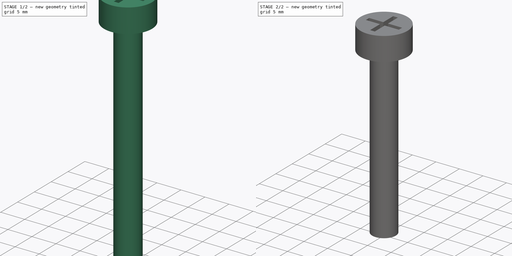
[diagram: build sequence overview — one tinted view per stage of 2, left to right]
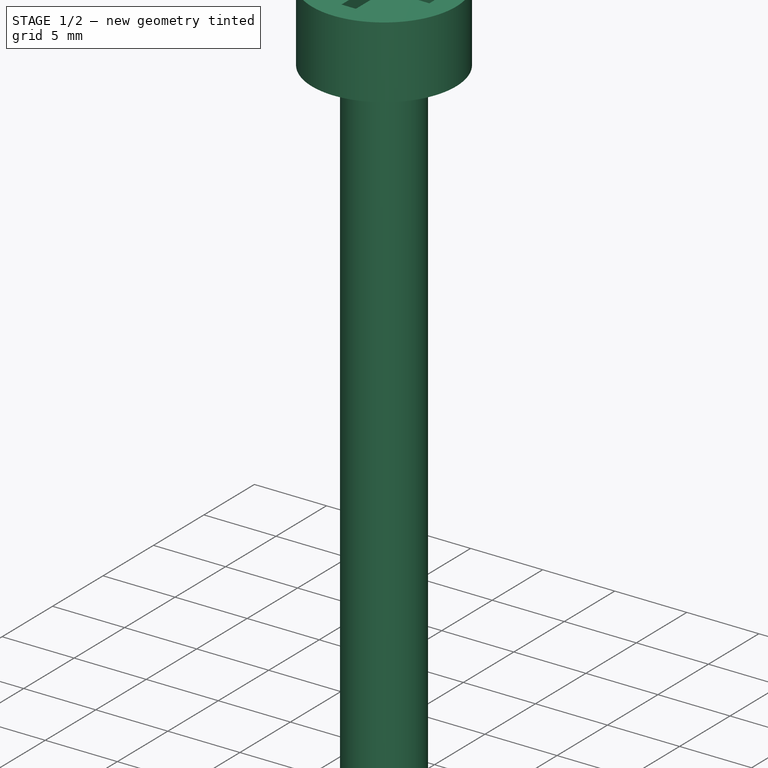
[diagram: stage 1 of 2 — iso view after this stage's code; geometry added in this stage tinted green]
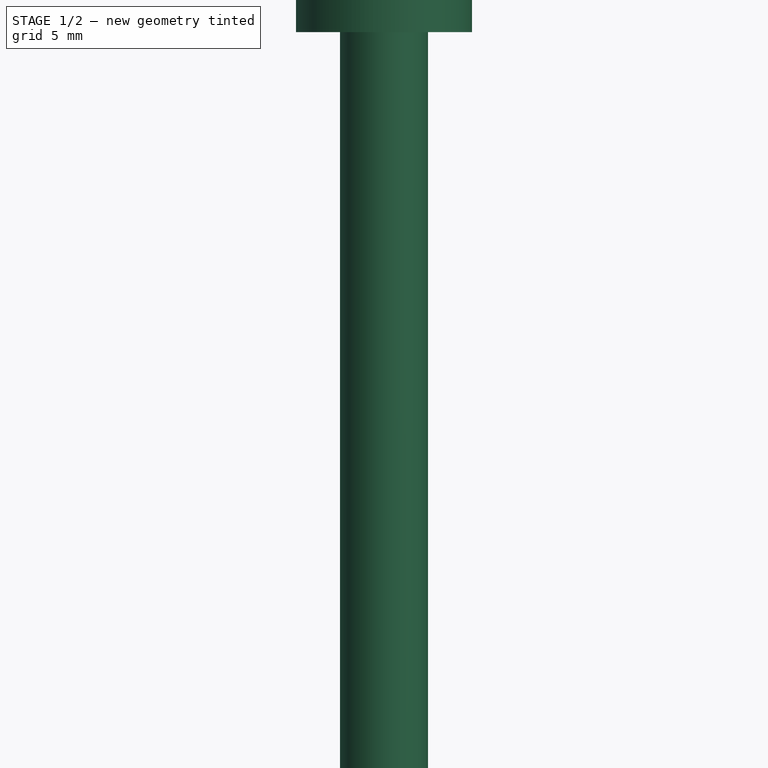
[diagram: stage 1 of 2 — front view after this stage's code; geometry added in this stage tinted green]
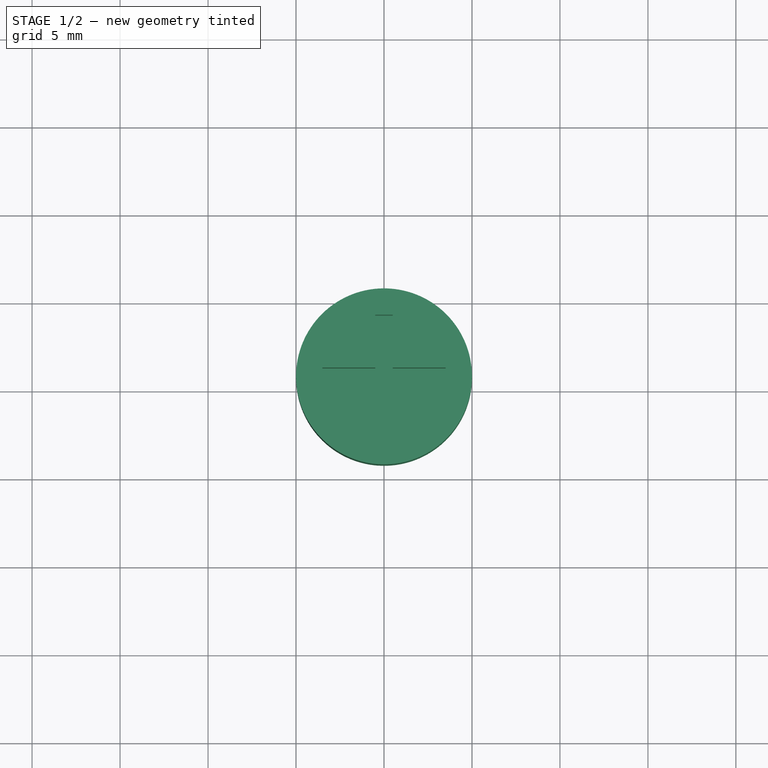
[diagram: stage 1 of 2 — top view after this stage's code; geometry added in this stage tinted green]
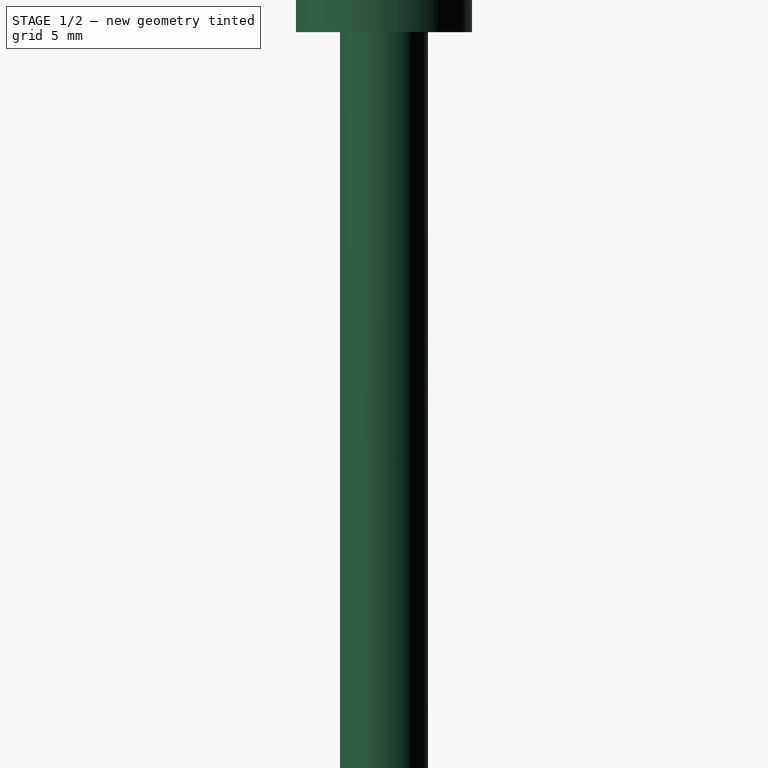
[diagram: stage 1 of 2 — right view after this stage's code; geometry added in this stage tinted green]
FCSTD DOCUMENT  (FreeCAD 1.0R39109 (Git))
Label: screw
License: All rights reserved
LicenseURL: https://en.wikipedia.org/wiki/All_rights_reserved
objects: Sketcher::SketchObject×3, PartDesign::Pocket×2, PartDesign::Revolution×1, PartDesign::Body×1
note: 16 computed .brp shape members not serialized (recipe doc carries the construction recipe); baked Part::Feature solids carry a one-line shape summary decoded from their .brp

FEATURE [Sketcher::SketchObject] Sketch
  ArcFitTolerance = 1e-06
  AttachmentSupport = -> [XZ_Plane]
  FullyConstrained = true
  MakeInternals = false
  MapMode = 5
  Placement = pos=(0,0,0) rot=(1,0,0;1.5708rad)
  sketch-geometry (6):
    g0: LineSegment StartX=0 StartY=50 StartZ=0 EndX=5 EndY=50 EndZ=0
    g1: LineSegment StartX=5 StartY=50 StartZ=0 EndX=5 EndY=45 EndZ=0
    g2: LineSegment StartX=5 StartY=45 StartZ=0 EndX=2.5 EndY=45 EndZ=0
    g3: LineSegment StartX=2.5 StartY=45 StartZ=0 EndX=2.5 EndY=0 EndZ=0
    g4: LineSegment StartX=2.5 StartY=0 StartZ=0 EndX=0 EndY=0 EndZ=0
    g5: LineSegment StartX=0 StartY=0 StartZ=0 EndX=0 EndY=50 EndZ=0
  constraints (18):
    c: PointOnObject(g0,g-2)
    c: Horizontal(g0)
    c: Coincident(g0,g1)
    c: Vertical(g1)
    c: Coincident(g1,g2)
    c: Horizontal(g2)
    c: Coincident(g2,g3)
    c: Vertical(g3)
    c: Coincident(g3,g4)
    c: PointOnObject(g4,g-2)
    c: Horizontal(g4)
    c: Coincident(g4,g5)
    c: Coincident(g5,g0)
    c: DistanceY(g3,g3) = 45
    c: DistanceY(g1,g1) = 5
    c: DistanceX(g0,g0) = 5
    c: Distance(g4,g4) = 2.5
    c: Horizontal(g4,g-1)
FEATURE [PartDesign::Revolution] Revolution
  Angle = 360
  Angle2 = 60
  Axis = (0,2e-16,1)
  Base = (0,0,0)
  Placement = pos=(0,0,0) rot=(1,0,0;1.5708rad)
  Profile = -> Sketch
  ReferenceAxis = -> Sketch [V_Axis]
  Refine = true
  Reversed = true
  Suppressed = false
  Type = 0
FEATURE [Sketcher::SketchObject] Sketch001
  ArcFitTolerance = 1e-06
  AttachmentSupport = -> [Revolution]
  FullyConstrained = true
  MakeInternals = false
  MapMode = 5
  Placement = pos=(0,2.2e-14,50) rot=(0,0,1;3.14159rad)
  sketch-geometry (12):
    g0: LineSegment StartX=-3.5 StartY=0.5 StartZ=0 EndX=-0.5 EndY=0.5 EndZ=0
    g1: LineSegment StartX=-0.5 StartY=0.5 StartZ=0 EndX=-0.5 EndY=3.5 EndZ=0
    g2: LineSegment StartX=-0.5 StartY=3.5 StartZ=0 EndX=0.5 EndY=3.5 EndZ=0
    g3: LineSegment StartX=0.5 StartY=3.5 StartZ=0 EndX=0.5 EndY=0.5 EndZ=0
    g4: LineSegment StartX=0.5 StartY=0.5 StartZ=0 EndX=3.5 EndY=0.5 EndZ=0
    g5: LineSegment StartX=3.5 StartY=0.5 StartZ=0 EndX=3.5 EndY=-0.5 EndZ=0
    g6: LineSegment StartX=3.5 StartY=-0.5 StartZ=0 EndX=0.5 EndY=-0.5 EndZ=0
    g7: LineSegment StartX=0.5 StartY=-0.5 StartZ=0 EndX=0.5 EndY=-3.5 EndZ=0
    g8: LineSegment StartX=0.5 StartY=-3.5 StartZ=0 EndX=-0.5 EndY=-3.5 EndZ=0
    g9: LineSegment StartX=-0.5 StartY=-3.5 StartZ=0 EndX=-0.5 EndY=-0.5 EndZ=0
    g10: LineSegment StartX=-0.5 StartY=-0.5 StartZ=0 EndX=-3.5 EndY=-0.5 EndZ=0
    g11: LineSegment StartX=-3.5 StartY=-0.5 StartZ=0 EndX=-3.5 EndY=0.5 EndZ=0
  constraints (35):
    c: Horizontal(g0)
    c: Coincident(g0,g1)
    c: Vertical(g1)
    c: Coincident(g1,g2)
    c: Horizontal(g2)
    c: Coincident(g2,g3)
    c: Vertical(g3)
    c: Coincident(g3,g4)
    c: Coincident(g4,g5)
    c: Coincident(g5,g6)
    c: Coincident(g6,g7)
    c: Coincident(g7,g8)
    c: Coincident(g8,g9)
    c: Coincident(g9,g10)
    c: Coincident(g10,g11)
    c: Coincident(g11,g0)
    c: Vertical(g11)
    c: Horizontal(g10)
    c: Vertical(g9)
    c: Horizontal(g8)
    c: Vertical(g7)
    c: Horizontal(g6)
    c: Horizontal(g4)
    c: Vertical(g5)
    c: Horizontal(g3,g0)
    c: Horizontal(g9,g6)
    c: Vertical(g6,g3)
    c: Vertical(g0,g9)
    c: Equal(g5,g2)
    c: Equal(g4,g3)
    c: Equal(g10,g6)
    c: DistanceY(g1,g1) = 3
    c: DistanceY(g11,g11) = 1
    c: Equal(g7,g3)
    c: Symmetric(g3,g9,g-1)
FEATURE [PartDesign::Pocket] Pocket
  BaseFeature = -> Revolution
  Direction = (0,0,-1)
  Length = 3
  Length2 = 5
  Placement = pos=(0,0,0) rot=(1,0,0;1.5708rad)
  Profile = -> Sketch001
  ReferenceAxis = -> Sketch001 [N_Axis]
  Refine = true
  Suppressed = false
  Type = 0
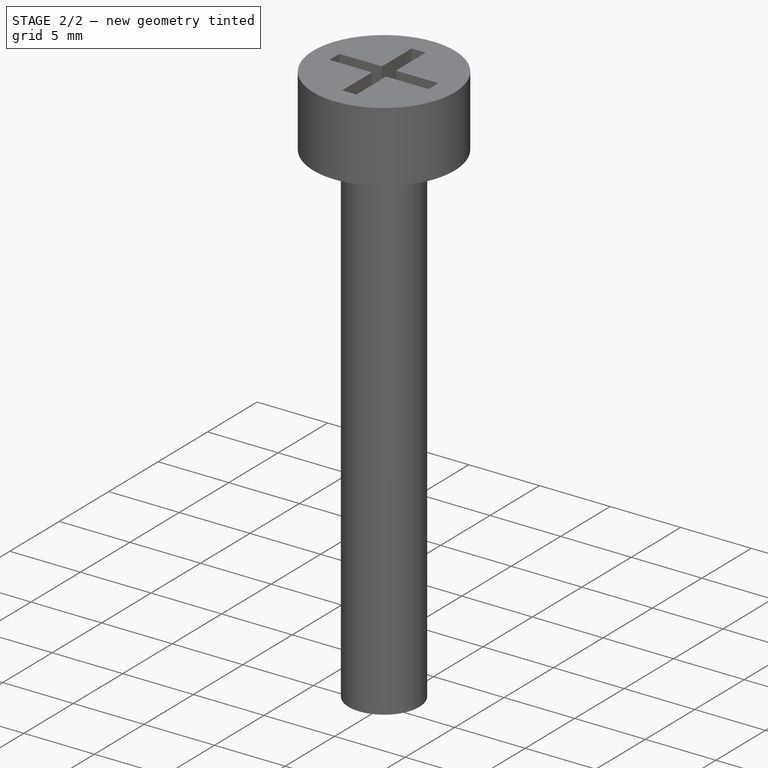
[diagram: stage 2 of 2 — iso view after this stage's code; geometry added in this stage tinted green]
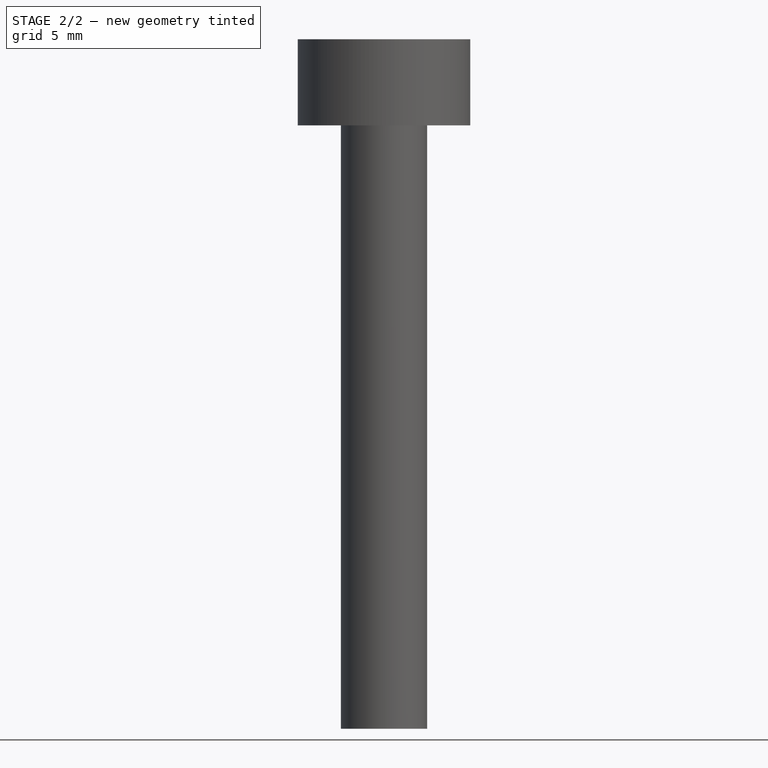
[diagram: stage 2 of 2 — front view after this stage's code; geometry added in this stage tinted green]
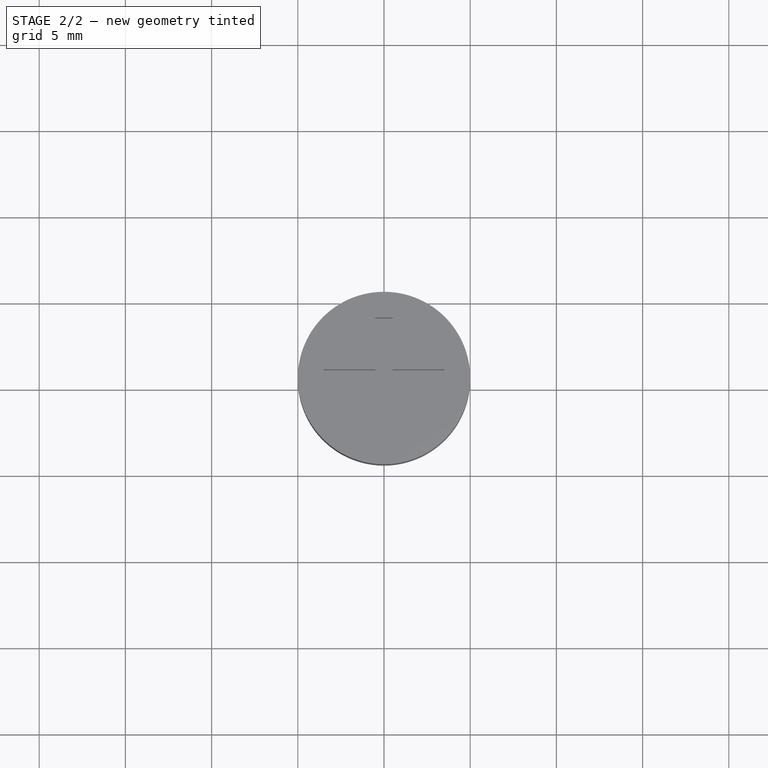
[diagram: stage 2 of 2 — top view after this stage's code; geometry added in this stage tinted green]
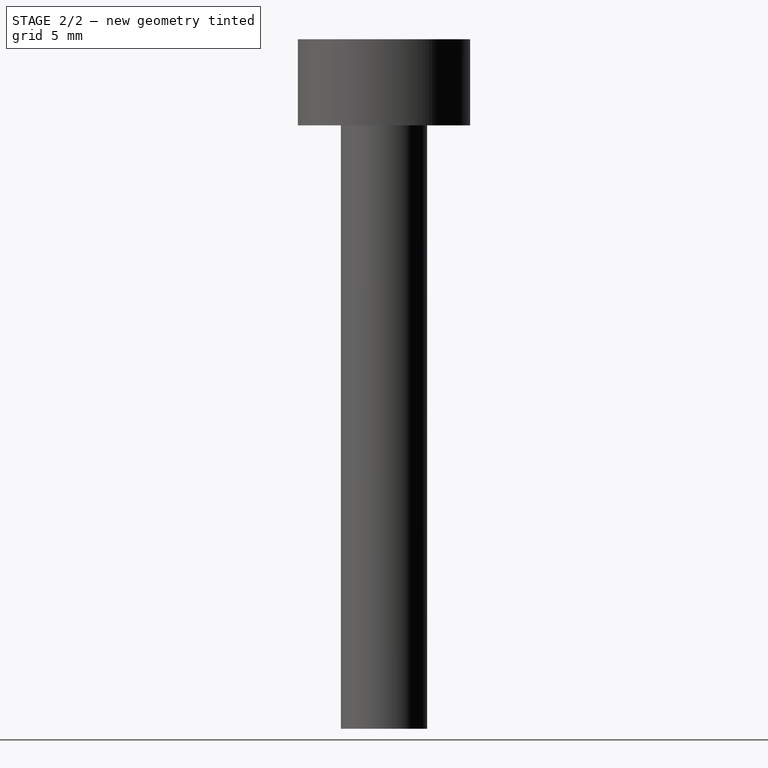
[diagram: stage 2 of 2 — right view after this stage's code; geometry added in this stage tinted green]
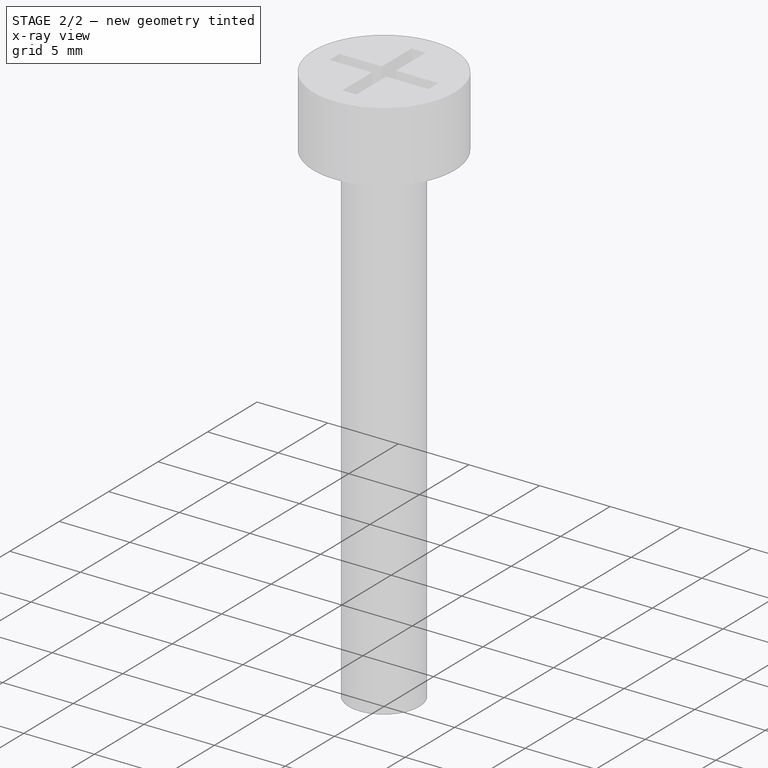
[diagram: stage 2 of 2 — x-ray composite at the iso view; earlier geometry ghosted, this stage's added geometry solid]
FEATURE [Sketcher::SketchObject] Sketch002
  ArcFitTolerance = 1e-06
  AttachmentSupport = -> [Pocket]
  FullyConstrained = true
  MakeInternals = false
  MapMode = 5
  Placement = pos=(0,0,0) rot=(1,0,0;3.14159rad)
FEATURE [PartDesign::Pocket] Pocket001
  BaseFeature = -> Pocket
  Direction = (0,4e-16,1)
  Length = 10
  Length2 = 5
  Placement = pos=(0,0,0) rot=(1,0,0;1.5708rad)
  Profile = -> Pocket [Face18]
  Refine = true
  Suppressed = false
  Type = 0
FEATURE [PartDesign::Body] Body
  AllowCompound = false
  Group = -> [Sketch,Revolution,Sketch001,Pocket,Sketch002,Pocket001]
  Origin = -> Origin
  Tip = -> Pocket001
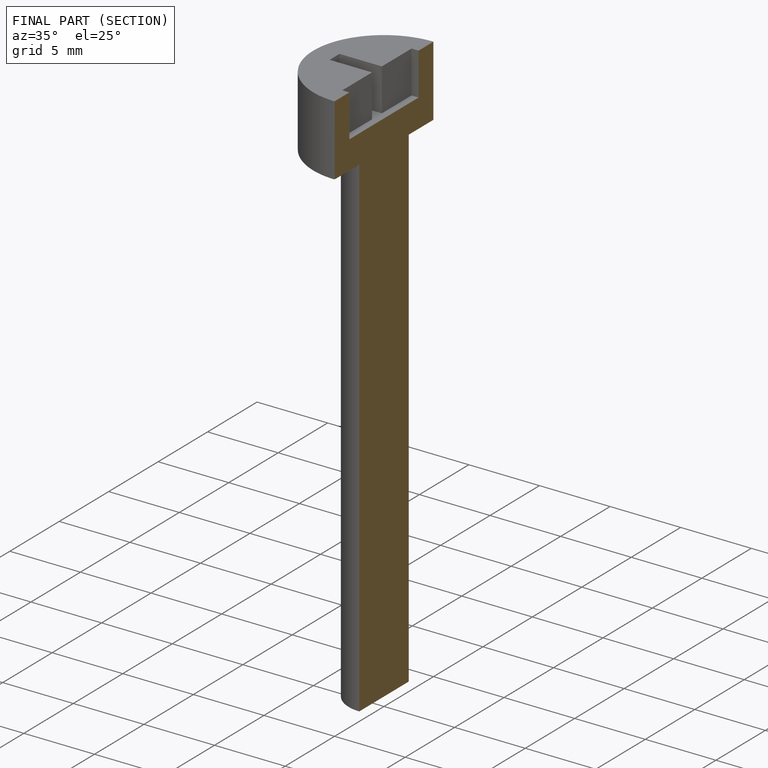
[diagram: finished part — half-section view (interior)]
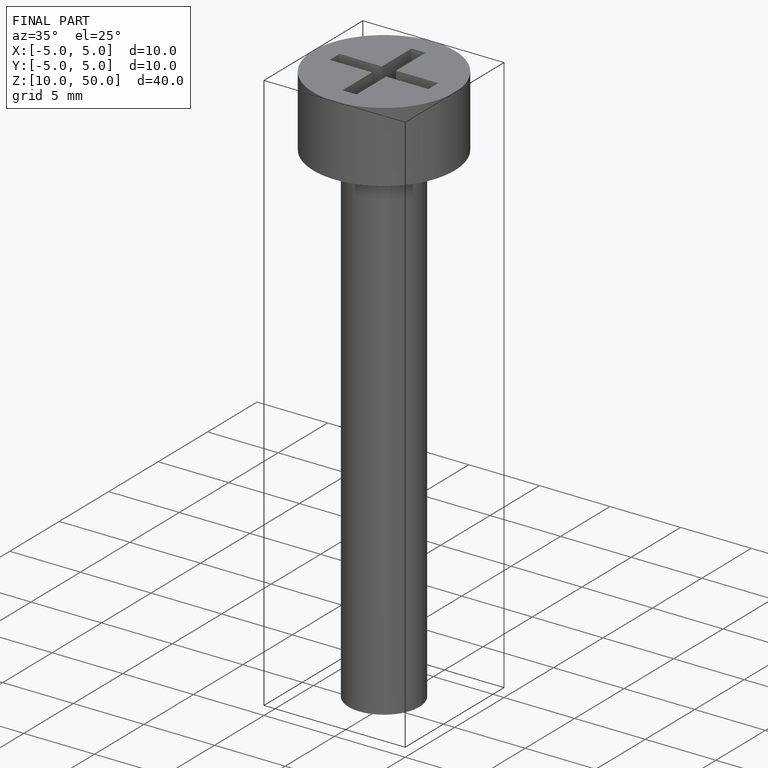
[diagram: finished part — iso view with bounding-box wireframe]
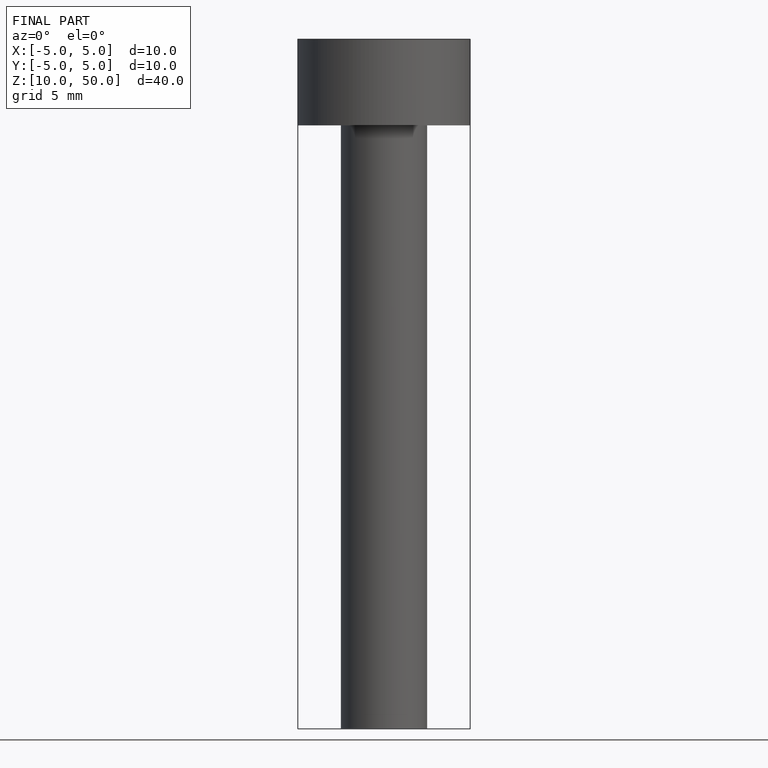
[diagram: finished part — front view with bounding-box wireframe]
